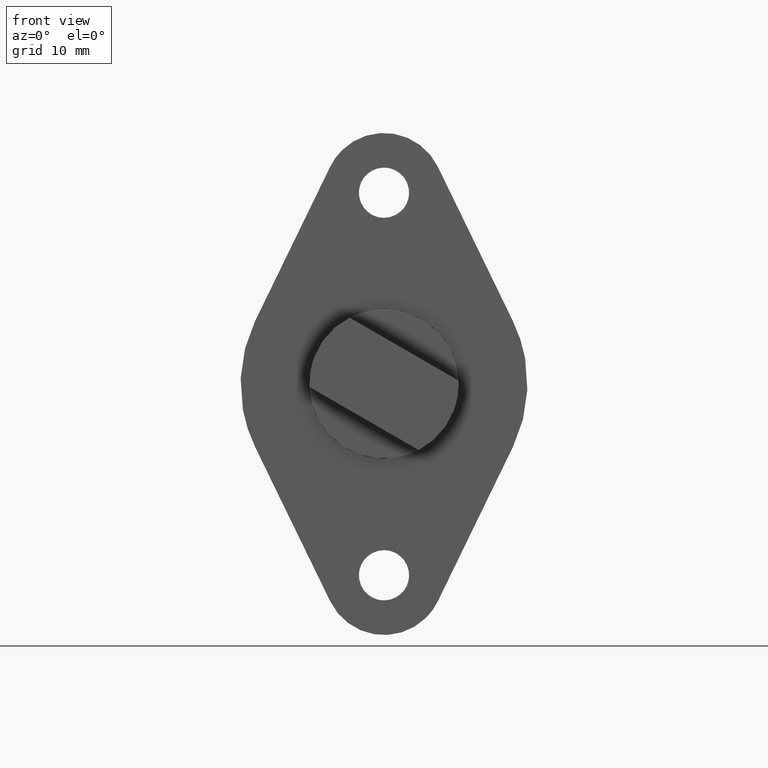
[diagram: clean part render]
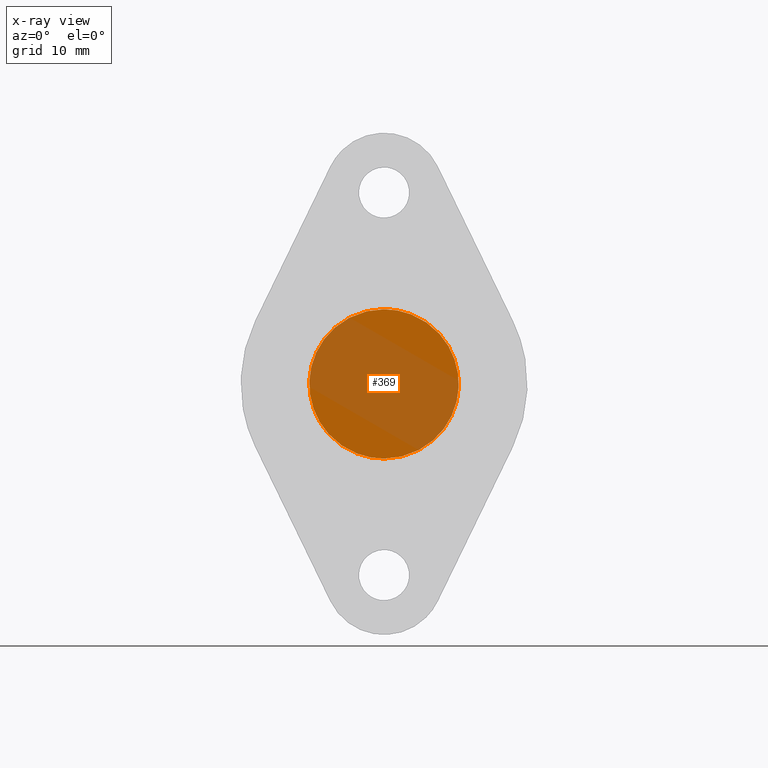
[diagram: x-ray — body ghosted, one internal face saturated and labeled with its STEP entity id]
A machine part, front view, then the same camera in x-ray: the body is ghosted and one INTERNAL B-rep face — a face not visible from any outside direction — is saturated and labeled: STEP entity #369.
In plain terms, the highlighted face is a freeform B-spline surface patch.
Its self-contained STEP definition (entity closure, byte-faithful):
#62=CARTESIAN_POINT('',(4.651094597420952,4.492240E-014,4.174913951605348));
#63=VERTEX_POINT('',#62);
#64=CARTESIAN_POINT('',(0.0,0.0,6.250010474177202));
#65=VERTEX_POINT('',#64);
#66=CARTESIAN_POINT('',(4.651094597420952,4.492240E-014,4.174913951605348));
#67=CARTESIAN_POINT('',(2.788451850535834,0.0,6.250010474177202));
#68=CARTESIAN_POINT('',(0.0,0.0,6.250010474177202));
#76=(BOUNDED_CURVE()B_SPLINE_CURVE(2,(#66,#67,#68),.UNSPECIFIED.,.F.,.U.)B_SPLINE_CURVE_WITH_KNOTS((3,3),(0.866865001230949,1.0),.UNSPECIFIED.)CURVE()GEOMETRIC_REPRESENTATION_ITEM()RATIONAL_B_SPLINE_CURVE((0.854173651312303,0.844022646695230,1.0))REPRESENTATION_ITEM(''));
#77=EDGE_CURVE('',#63,#65,#76,.T.);
#79=CARTESIAN_POINT('',(-4.651094597420639,4.492240E-014,-4.174893003251293));
#80=VERTEX_POINT('',#79);
#81=CARTESIAN_POINT('',(0.0,0.0,6.250010474177202));
#82=CARTESIAN_POINT('',(-6.249999999999999,0.0,6.250010474177202));
#83=CARTESIAN_POINT('',(-6.250000000000000,0.0,0.000010474177202));
#84=CARTESIAN_POINT('',(-6.250000000000000,0.0,-2.393615811819256));
#85=CARTESIAN_POINT('',(-4.651094597420640,4.492240E-014,-4.174893003251294));
#93=(BOUNDED_CURVE()B_SPLINE_CURVE(2,(#81,#82,#83,#84,#85),.UNSPECIFIED.,.F.,.U.)B_SPLINE_CURVE_WITH_KNOTS((3,2,3),(0.0,0.250000000000000,0.366865001230971),.UNSPECIFIED.)CURVE()GEOMETRIC_REPRESENTATION_ITEM()RATIONAL_B_SPLINE_CURVE((1.0,0.707106781186547,1.0,0.863084134491291,0.854173651312300))REPRESENTATION_ITEM(''));
#94=EDGE_CURVE('',#65,#80,#93,.T.);
#190=CARTESIAN_POINT('',(0.0,0.0,-6.249989525822799));
#191=VERTEX_POINT('',#190);
#192=CARTESIAN_POINT('',(0.0,0.0,-6.249989525822799));
#193=CARTESIAN_POINT('',(6.249999999999999,0.0,-6.249989525822799));
#194=CARTESIAN_POINT('',(6.250000000000000,0.0,0.000010474177202));
#195=CARTESIAN_POINT('',(6.249999999999999,0.0,2.393636760173132));
#196=CARTESIAN_POINT('',(4.651094597420952,4.492240E-014,4.174913951605348));
#204=(BOUNDED_CURVE()B_SPLINE_CURVE(2,(#192,#193,#194,#195,#196),.UNSPECIFIED.,.F.,.U.)B_SPLINE_CURVE_WITH_KNOTS((3,2,3),(0.500000000000000,0.750000000000000,0.866865001230949),.UNSPECIFIED.)CURVE()GEOMETRIC_REPRESENTATION_ITEM()RATIONAL_B_SPLINE_CURVE((1.0,0.707106781186547,1.0,0.863084134491317,0.854173651312303))REPRESENTATION_ITEM(''));
#205=EDGE_CURVE('',#191,#63,#204,.T.);
#268=CARTESIAN_POINT('',(-4.651094597420640,4.492240E-014,-4.174893003251294));
#269=CARTESIAN_POINT('',(-2.788451850535272,0.0,-6.249989525822799));
#270=CARTESIAN_POINT('',(0.0,0.0,-6.249989525822799));
#278=(BOUNDED_CURVE()B_SPLINE_CURVE(2,(#268,#269,#270),.UNSPECIFIED.,.F.,.U.)B_SPLINE_CURVE_WITH_KNOTS((3,3),(0.366865001230971,0.500000000000000),.UNSPECIFIED.)CURVE()GEOMETRIC_REPRESENTATION_ITEM()RATIONAL_B_SPLINE_CURVE((0.854173651312300,0.844022646695257,1.0))REPRESENTATION_ITEM(''));
#279=EDGE_CURVE('',#80,#191,#278,.T.);
#358=CARTESIAN_POINT('',(-6.869939033310835,-1.734723E-015,6.874385449949776));
#359=CARTESIAN_POINT('',(6.869939256828253,-1.734723E-015,6.874385449949775));
#360=CARTESIAN_POINT('',(-6.869939033310835,-1.734723E-015,-6.874364836871501));
#361=CARTESIAN_POINT('',(6.869939256828253,-1.734723E-015,-6.874364836871501));
#362=B_SPLINE_SURFACE_WITH_KNOTS('',1,1,((#358,#360),(#359,#361)),.UNSPECIFIED.,.F.,.F.,.U.,(2,2),(2,2),(0.0,13.739878290139091),(0.0,13.748750286821281),.UNSPECIFIED.);
#363=ORIENTED_EDGE('',*,*,#77,.F.);
#364=ORIENTED_EDGE('',*,*,#205,.F.);
#365=ORIENTED_EDGE('',*,*,#279,.F.);
#366=ORIENTED_EDGE('',*,*,#94,.F.);
#367=EDGE_LOOP('',(#363,#364,#365,#366));
#368=FACE_OUTER_BOUND('',#367,.T.);
#369=ADVANCED_FACE('',(#368),#362,.T.);